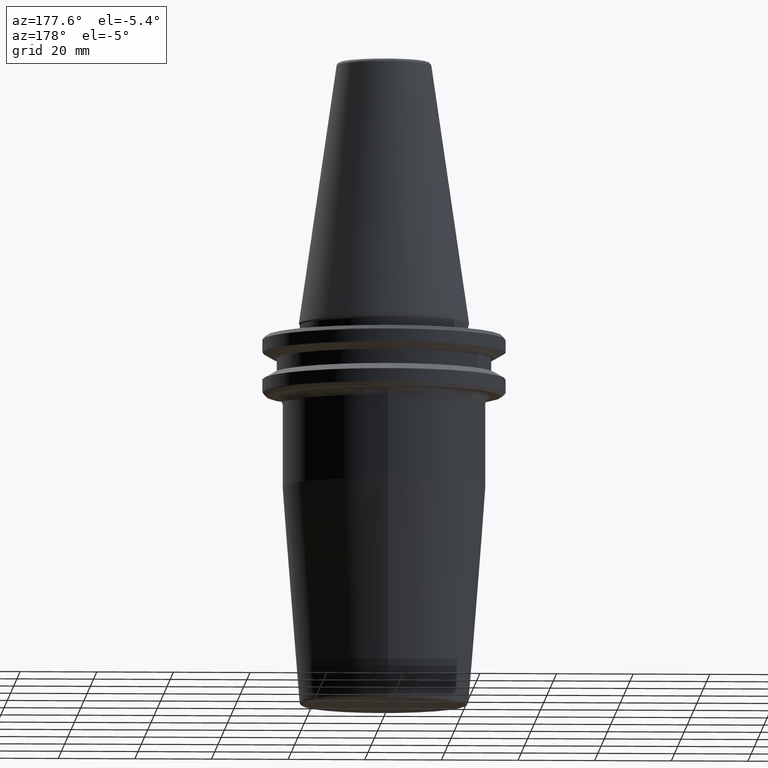
[diagram: clean part render]
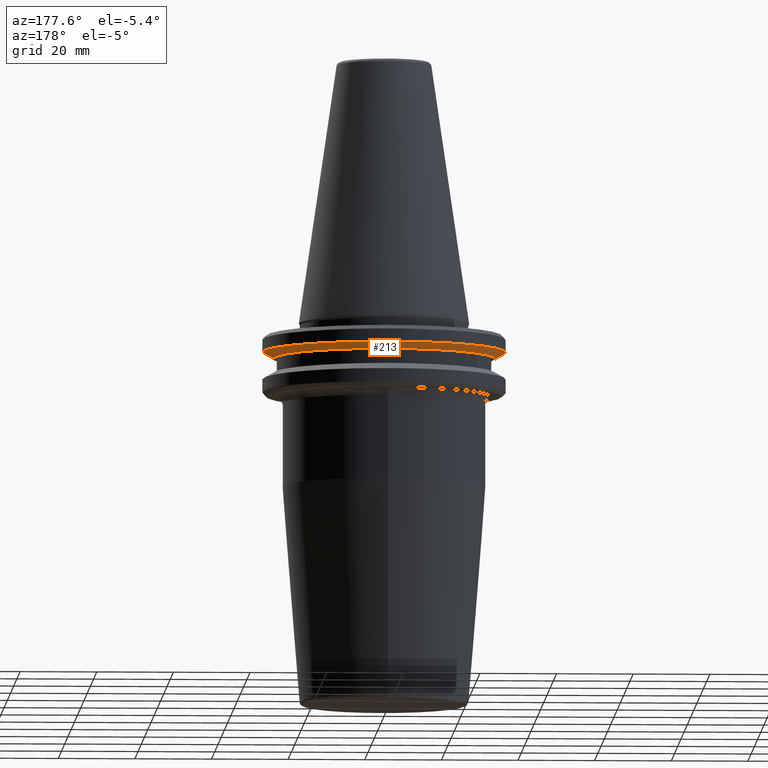
[diagram: same view with one face highlighted and labeled with its STEP entity id]
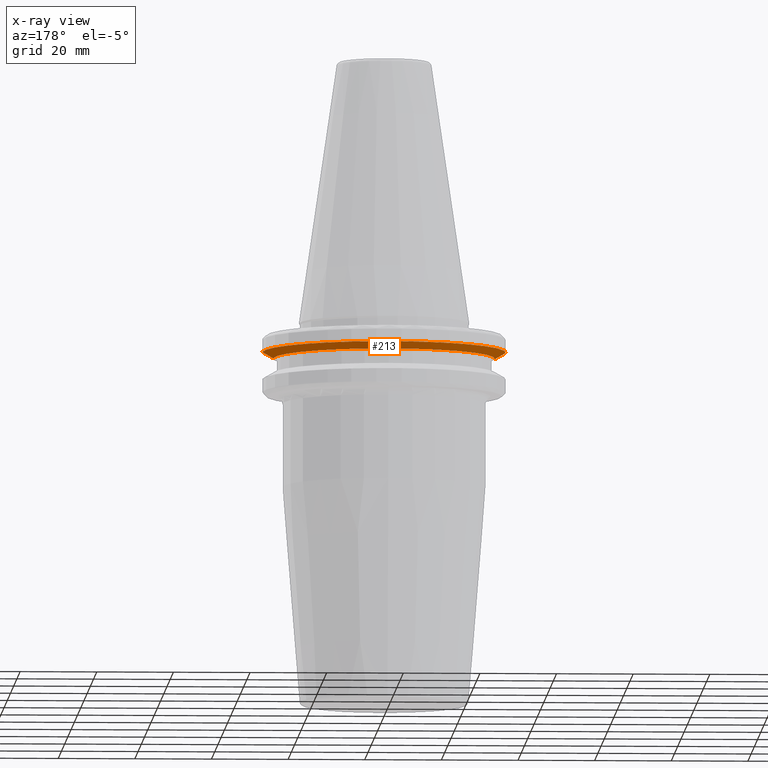
[diagram: x-ray of the same camera — body ghosted, the highlighted face saturated]
A machine part, auxiliary view. The second image highlights one B-rep face of the part: STEP entity #213.
The next image is the same camera in x-ray: the body ghosted, the highlighted face saturated — about 0% of this face is hidden behind the body in this view.
In plain terms, the highlighted conical surface has half-angle 60 deg.
Its self-contained STEP definition (entity closure, byte-faithful):
#15 = DIRECTION ( 'NONE',  ( 1.000000000000000000, 0.0000000000000000000, 0.0000000000000000000 ) ) ;
#48 = CARTESIAN_POINT ( 'NONE',  ( -31.75000000000000000, 3.888253587292846500E-015, -7.578163357943284800 ) ) ;
#53 = DIRECTION ( 'NONE',  ( 1.000000000000000000, 0.0000000000000000000, 0.0000000000000000000 ) ) ;
#83 = VERTEX_POINT ( 'NONE', #856 ) ;
#120 = VECTOR ( 'NONE', #333, 1000.000000000000000 ) ;
#156 = LINE ( 'NONE', #1015, #120 ) ;
#157 = EDGE_CURVE ( 'NONE', #83, #1011, #970, .T. ) ;
#193 = ORIENTED_EDGE ( 'NONE', *, *, #157, .F. ) ;
#213 = ADVANCED_FACE ( 'NONE', ( #641 ), #880, .T. ) ;
#220 = EDGE_CURVE ( 'NONE', #676, #83, #156, .T. ) ;
#221 = AXIS2_PLACEMENT_3D ( 'NONE', #743, #439, #53 ) ;
#268 = ORIENTED_EDGE ( 'NONE', *, *, #563, .T. ) ;
#274 = DIRECTION ( 'NONE',  ( -0.8660254037844390400, 1.060575238724907400E-016, 0.4999999999999993300 ) ) ;
#333 = DIRECTION ( 'NONE',  ( 0.8660254037844390400, 0.0000000000000000000, 0.4999999999999993300 ) ) ;
#334 = EDGE_LOOP ( 'NONE', ( #268, #575, #193, #381 ) ) ;
#359 = EDGE_CURVE ( 'NONE', #914, #1011, #579, .T. ) ;
#381 = ORIENTED_EDGE ( 'NONE', *, *, #220, .F. ) ;
#436 = CARTESIAN_POINT ( 'NONE',  ( 28.94089653438084400, 0.0000000000000000000, -9.200000000000013500 ) ) ;
#439 = DIRECTION ( 'NONE',  ( -0.0000000000000000000, -0.0000000000000000000, 1.000000000000000000 ) ) ;
#442 = DIRECTION ( 'NONE',  ( -0.0000000000000000000, -0.0000000000000000000, 1.000000000000000000 ) ) ;
#507 = AXIS2_PLACEMENT_3D ( 'NONE', #529, #546, #15 ) ;
#529 = CARTESIAN_POINT ( 'NONE',  ( 0.0000000000000000000, 0.0000000000000000000, -7.578163357943284800 ) ) ;
#546 = DIRECTION ( 'NONE',  ( -0.0000000000000000000, -0.0000000000000000000, 1.000000000000000000 ) ) ;
#563 = EDGE_CURVE ( 'NONE', #676, #914, #666, .T. ) ;
#575 = ORIENTED_EDGE ( 'NONE', *, *, #359, .T. ) ;
#579 = LINE ( 'NONE', #1147, #854 ) ;
#641 = FACE_OUTER_BOUND ( 'NONE', #334, .T. ) ;
#666 = CIRCLE ( 'NONE', #221, 28.94089653438084400 ) ;
#676 = VERTEX_POINT ( 'NONE', #436 ) ;
#743 = CARTESIAN_POINT ( 'NONE',  ( 0.0000000000000000000, 0.0000000000000000000, -9.200000000000013500 ) ) ;
#854 = VECTOR ( 'NONE', #274, 1000.000000000000000 ) ;
#856 = CARTESIAN_POINT ( 'NONE',  ( 31.75000000000000000, 0.0000000000000000000, -7.578163357943284800 ) ) ;
#880 = CONICAL_SURFACE ( 'NONE', #507, 31.75000000000000000, 1.047197551196598500 ) ;
#914 = VERTEX_POINT ( 'NONE', #1228 ) ;
#970 = CIRCLE ( 'NONE', #1126, 31.75000000000000000 ) ;
#1011 = VERTEX_POINT ( 'NONE', #48 ) ;
#1015 = CARTESIAN_POINT ( 'NONE',  ( 31.75000000000000000, 0.0000000000000000000, -7.578163357943284800 ) ) ;
#1122 = CARTESIAN_POINT ( 'NONE',  ( 0.0000000000000000000, 0.0000000000000000000, -7.578163357943284800 ) ) ;
#1126 = AXIS2_PLACEMENT_3D ( 'NONE', #1122, #442, #1135 ) ;
#1135 = DIRECTION ( 'NONE',  ( 1.000000000000000000, 0.0000000000000000000, 0.0000000000000000000 ) ) ;
#1147 = CARTESIAN_POINT ( 'NONE',  ( -31.75000000000000000, 3.888253587292846500E-015, -7.578163357943284800 ) ) ;
#1228 = CARTESIAN_POINT ( 'NONE',  ( -28.94089653438084400, 3.716245608910634800E-015, -9.200000000000013500 ) ) ;